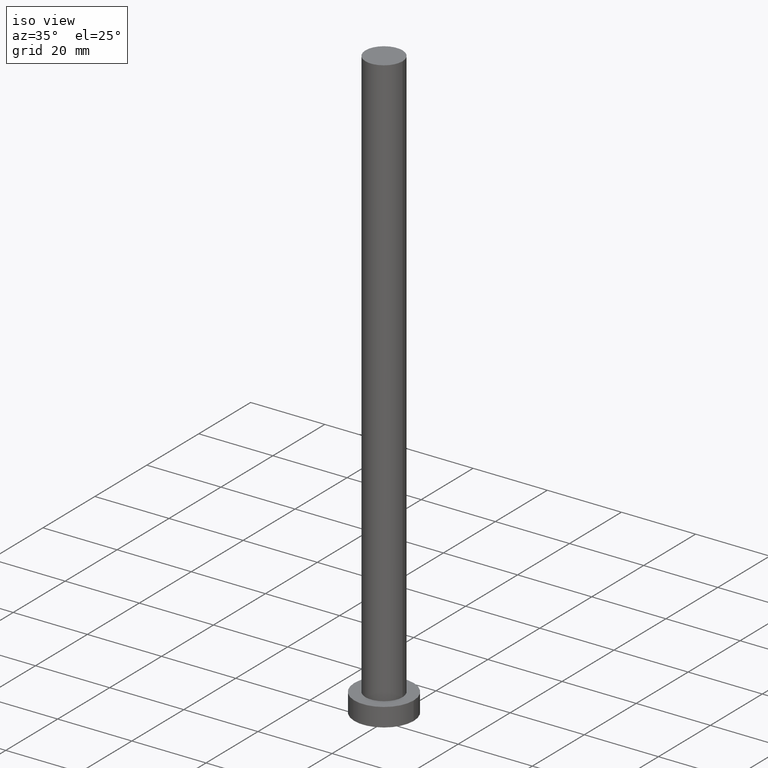
[diagram: clean part render]
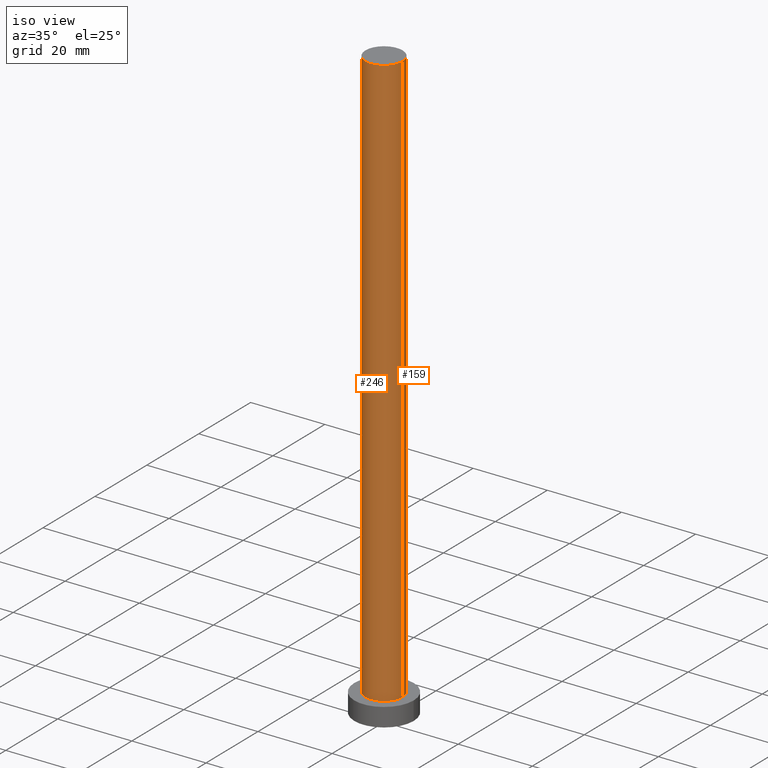
[diagram: same view with one multi-face feature highlighted, each face labeled with its STEP entity id]
A machine part, iso view. The highlighted faces form ONE feature: a constant-radius fillet chain: 2 tangent blend faces with common blend radius 5 mm. The faces share edges in the B-rep.
Their STEP definitions:
[1] entity #246 (Cylinder):
#11 = CARTESIAN_POINT ( 'NONE',  ( -5.000000000000000888, 0.000000000000000000, 160.0000000000000000 ) ) ;
#16 = LINE ( 'NONE', #11, #89 ) ;
#24 = DIRECTION ( 'NONE',  ( 0.000000000000000000, 0.000000000000000000, 1.000000000000000000 ) ) ;
#33 = VERTEX_POINT ( 'NONE', #46 ) ;
#41 = ORIENTED_EDGE ( 'NONE', *, *, #109, .F. ) ;
#45 = EDGE_CURVE ( 'NONE', #135, #61, #155, .T. ) ;
#46 = CARTESIAN_POINT ( 'NONE',  ( 5.000000000000000888, 6.123233995736767268E-16, 160.0000000000000000 ) ) ;
#51 = CIRCLE ( 'NONE', #199, 5.000000000000000888 ) ;
#57 = VECTOR ( 'NONE', #227, 1000.000000000000000 ) ;
#61 = VERTEX_POINT ( 'NONE', #128 ) ;
#63 = DIRECTION ( 'NONE',  ( -1.000000000000000000, 0.000000000000000000, 0.000000000000000000 ) ) ;
#70 = CARTESIAN_POINT ( 'NONE',  ( 0.000000000000000000, 0.000000000000000000, 160.0000000000000000 ) ) ;
#71 = CARTESIAN_POINT ( 'NONE',  ( -5.000000000000000888, 0.000000000000000000, 5.000000000000000000 ) ) ;
#83 = VERTEX_POINT ( 'NONE', #85 ) ;
#85 = CARTESIAN_POINT ( 'NONE',  ( -5.000000000000000888, 0.000000000000000000, 160.0000000000000000 ) ) ;
#89 = VECTOR ( 'NONE', #172, 1000.000000000000000 ) ;
#104 = CARTESIAN_POINT ( 'NONE',  ( 5.000000000000000888, 6.123233995736767268E-16, 160.0000000000000000 ) ) ;
#109 = EDGE_CURVE ( 'NONE', #33, #61, #151, .T. ) ;
#117 = DIRECTION ( 'NONE',  ( 0.000000000000000000, 0.000000000000000000, 1.000000000000000000 ) ) ;
#118 = CYLINDRICAL_SURFACE ( 'NONE', #252, 5.000000000000000888 ) ;
#120 = EDGE_LOOP ( 'NONE', ( #41, #123, #216, #238 ) ) ;
#123 = ORIENTED_EDGE ( 'NONE', *, *, #214, .F. ) ;
#128 = CARTESIAN_POINT ( 'NONE',  ( 5.000000000000000888, 6.123233995736767268E-16, 5.000000000000000000 ) ) ;
#135 = VERTEX_POINT ( 'NONE', #71 ) ;
#140 = EDGE_CURVE ( 'NONE', #83, #135, #16, .T. ) ;
#151 = LINE ( 'NONE', #104, #57 ) ;
#155 = CIRCLE ( 'NONE', #176, 5.000000000000000888 ) ;
#172 = DIRECTION ( 'NONE',  ( -0.000000000000000000, -0.000000000000000000, -1.000000000000000000 ) ) ;
#176 = AXIS2_PLACEMENT_3D ( 'NONE', #186, #24, #183 ) ;
#183 = DIRECTION ( 'NONE',  ( 1.000000000000000000, 0.000000000000000000, 0.000000000000000000 ) ) ;
#186 = CARTESIAN_POINT ( 'NONE',  ( 0.000000000000000000, 0.000000000000000000, 5.000000000000000000 ) ) ;
#193 = DIRECTION ( 'NONE',  ( 1.000000000000000000, 0.000000000000000000, 0.000000000000000000 ) ) ;
#196 = DIRECTION ( 'NONE',  ( -0.000000000000000000, -0.000000000000000000, -1.000000000000000000 ) ) ;
#199 = AXIS2_PLACEMENT_3D ( 'NONE', #70, #117, #193 ) ;
#214 = EDGE_CURVE ( 'NONE', #83, #33, #51, .T. ) ;
#216 = ORIENTED_EDGE ( 'NONE', *, *, #140, .T. ) ;
#227 = DIRECTION ( 'NONE',  ( -0.000000000000000000, -0.000000000000000000, -1.000000000000000000 ) ) ;
#238 = ORIENTED_EDGE ( 'NONE', *, *, #45, .T. ) ;
#239 = CARTESIAN_POINT ( 'NONE',  ( 0.000000000000000000, 0.000000000000000000, 160.0000000000000000 ) ) ;
#240 = FACE_OUTER_BOUND ( 'NONE', #120, .T. ) ;
#246 = ADVANCED_FACE ( 'NONE', ( #240 ), #118, .T. ) ;
#252 = AXIS2_PLACEMENT_3D ( 'NONE', #239, #196, #63 ) ;
[2] entity #159 (Cylinder):
#5 = EDGE_CURVE ( 'NONE', #61, #135, #111, .T. ) ;
#11 = CARTESIAN_POINT ( 'NONE',  ( -5.000000000000000888, 0.000000000000000000, 160.0000000000000000 ) ) ;
#13 = ORIENTED_EDGE ( 'NONE', *, *, #5, .T. ) ;
#16 = LINE ( 'NONE', #11, #89 ) ;
#28 = CARTESIAN_POINT ( 'NONE',  ( 0.000000000000000000, 0.000000000000000000, 160.0000000000000000 ) ) ;
#33 = VERTEX_POINT ( 'NONE', #46 ) ;
#46 = CARTESIAN_POINT ( 'NONE',  ( 5.000000000000000888, 6.123233995736767268E-16, 160.0000000000000000 ) ) ;
#48 = DIRECTION ( 'NONE',  ( -1.000000000000000000, 0.000000000000000000, 0.000000000000000000 ) ) ;
#57 = VECTOR ( 'NONE', #227, 1000.000000000000000 ) ;
#61 = VERTEX_POINT ( 'NONE', #128 ) ;
#65 = DIRECTION ( 'NONE',  ( 1.000000000000000000, 0.000000000000000000, 0.000000000000000000 ) ) ;
#68 = CYLINDRICAL_SURFACE ( 'NONE', #129, 5.000000000000000888 ) ;
#71 = CARTESIAN_POINT ( 'NONE',  ( -5.000000000000000888, 0.000000000000000000, 5.000000000000000000 ) ) ;
#80 = EDGE_LOOP ( 'NONE', ( #127, #139, #13, #218 ) ) ;
#81 = EDGE_CURVE ( 'NONE', #33, #83, #179, .T. ) ;
#83 = VERTEX_POINT ( 'NONE', #85 ) ;
#85 = CARTESIAN_POINT ( 'NONE',  ( -5.000000000000000888, 0.000000000000000000, 160.0000000000000000 ) ) ;
#89 = VECTOR ( 'NONE', #172, 1000.000000000000000 ) ;
#104 = CARTESIAN_POINT ( 'NONE',  ( 5.000000000000000888, 6.123233995736767268E-16, 160.0000000000000000 ) ) ;
#109 = EDGE_CURVE ( 'NONE', #33, #61, #151, .T. ) ;
#111 = CIRCLE ( 'NONE', #113, 5.000000000000000888 ) ;
#113 = AXIS2_PLACEMENT_3D ( 'NONE', #197, #148, #220 ) ;
#127 = ORIENTED_EDGE ( 'NONE', *, *, #81, .F. ) ;
#128 = CARTESIAN_POINT ( 'NONE',  ( 5.000000000000000888, 6.123233995736767268E-16, 5.000000000000000000 ) ) ;
#129 = AXIS2_PLACEMENT_3D ( 'NONE', #241, #182, #48 ) ;
#135 = VERTEX_POINT ( 'NONE', #71 ) ;
#137 = AXIS2_PLACEMENT_3D ( 'NONE', #28, #169, #65 ) ;
#139 = ORIENTED_EDGE ( 'NONE', *, *, #109, .T. ) ;
#140 = EDGE_CURVE ( 'NONE', #83, #135, #16, .T. ) ;
#143 = FACE_OUTER_BOUND ( 'NONE', #80, .T. ) ;
#148 = DIRECTION ( 'NONE',  ( 0.000000000000000000, 0.000000000000000000, 1.000000000000000000 ) ) ;
#151 = LINE ( 'NONE', #104, #57 ) ;
#159 = ADVANCED_FACE ( 'NONE', ( #143 ), #68, .T. ) ;
#169 = DIRECTION ( 'NONE',  ( 0.000000000000000000, 0.000000000000000000, 1.000000000000000000 ) ) ;
#172 = DIRECTION ( 'NONE',  ( -0.000000000000000000, -0.000000000000000000, -1.000000000000000000 ) ) ;
#179 = CIRCLE ( 'NONE', #137, 5.000000000000000888 ) ;
#182 = DIRECTION ( 'NONE',  ( -0.000000000000000000, -0.000000000000000000, -1.000000000000000000 ) ) ;
#197 = CARTESIAN_POINT ( 'NONE',  ( 0.000000000000000000, 0.000000000000000000, 5.000000000000000000 ) ) ;
#218 = ORIENTED_EDGE ( 'NONE', *, *, #140, .F. ) ;
#220 = DIRECTION ( 'NONE',  ( 1.000000000000000000, 0.000000000000000000, 0.000000000000000000 ) ) ;
#227 = DIRECTION ( 'NONE',  ( -0.000000000000000000, -0.000000000000000000, -1.000000000000000000 ) ) ;
#241 = CARTESIAN_POINT ( 'NONE',  ( 0.000000000000000000, 0.000000000000000000, 160.0000000000000000 ) ) ;